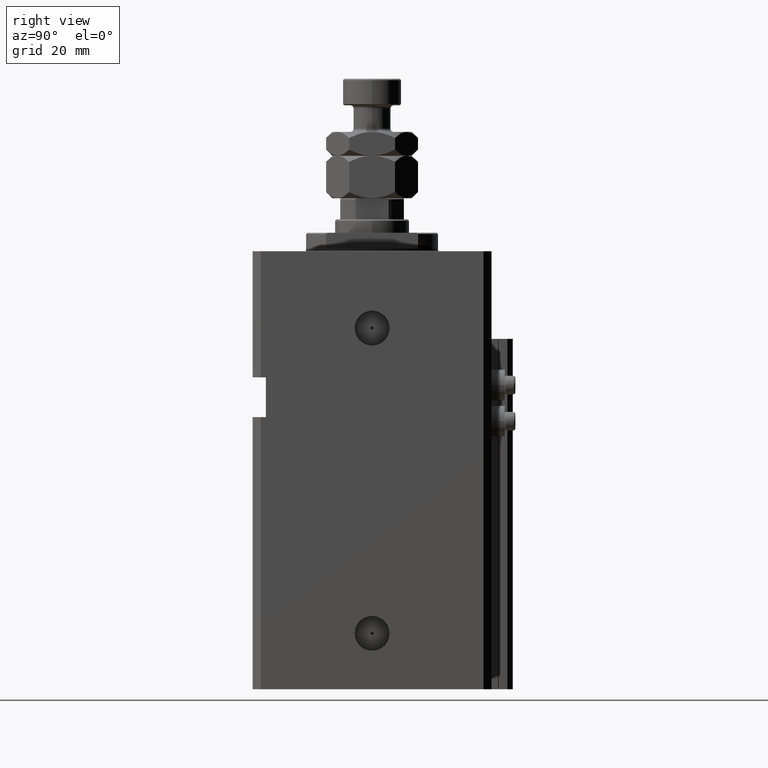
[diagram: clean part render]
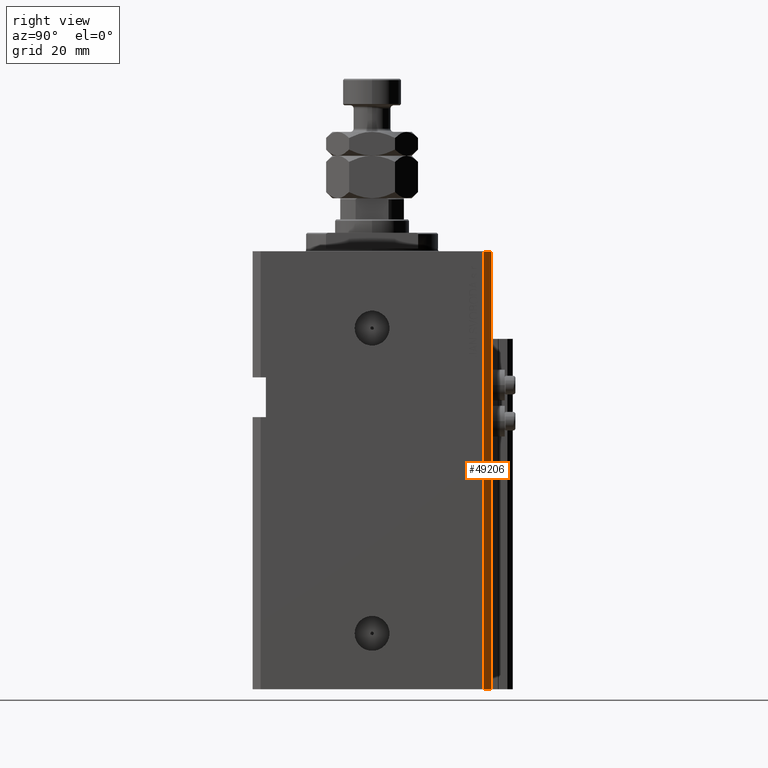
[diagram: same view with one face highlighted and labeled with its STEP entity id]
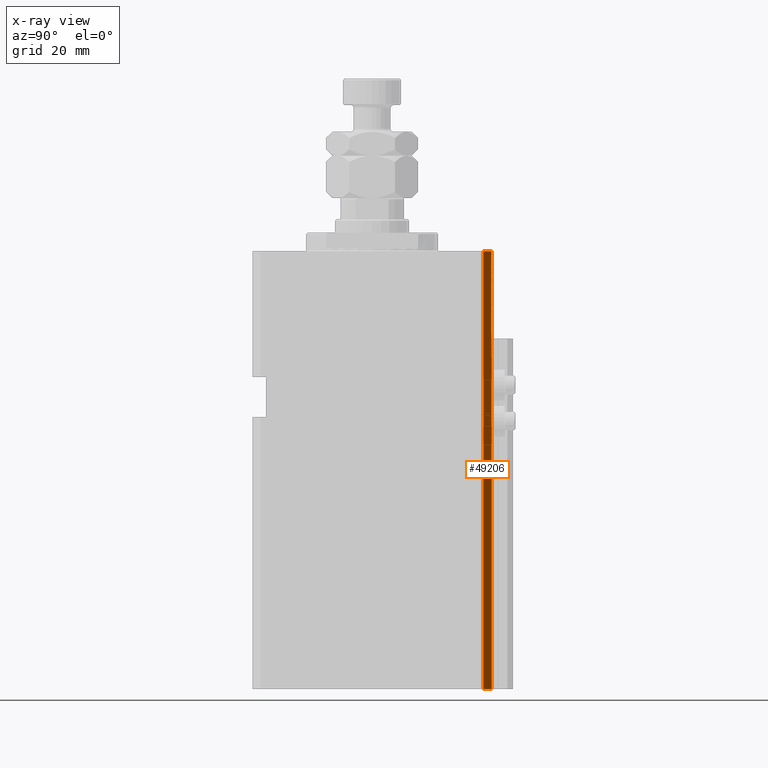
[diagram: x-ray of the same camera — body ghosted, the highlighted face saturated]
A machine part, right view. The second image highlights one B-rep face of the part: STEP entity #49206.
The next image is the same camera in x-ray: the body ghosted, the highlighted face saturated — about 0% of this face is hidden behind the body in this view.
In plain terms, the highlighted planar face has unit normal (0.7071, 0.7071, 0).
Its self-contained STEP definition (entity closure, byte-faithful):
#1126 = ORIENTED_EDGE ( 'NONE', *, *, #10056, .F. ) ;
#1557 = PLANE ( 'NONE',  #15320 ) ;
#2961 = EDGE_CURVE ( 'NONE', #39961, #24037, #12122, .T. ) ;
#6169 = ORIENTED_EDGE ( 'NONE', *, *, #49326, .T. ) ;
#7455 = CARTESIAN_POINT ( 'NONE',  ( 57.50000000000055422, 41.99999999999997868, -165.0000000000000000 ) ) ;
#7685 = DIRECTION ( 'NONE',  ( -0.7071067811865376918, 0.7071067811865574537, 0.000000000000000000 ) ) ;
#9318 = CARTESIAN_POINT ( 'NONE',  ( 54.50000000000058975, 45.00000000000002842, 0.000000000000000000 ) ) ;
#9949 = VECTOR ( 'NONE', #39708, 1000.000000000000000 ) ;
#10056 = EDGE_CURVE ( 'NONE', #24037, #17144, #27767, .T. ) ;
#12122 = LINE ( 'NONE', #43599, #9949 ) ;
#12810 = EDGE_CURVE ( 'NONE', #39961, #34207, #50616, .T. ) ;
#15320 = AXIS2_PLACEMENT_3D ( 'NONE', #22368, #33318, #22112 ) ;
#16936 = CARTESIAN_POINT ( 'NONE',  ( 54.50000000000058975, 45.00000000000002842, -165.0000000000000000 ) ) ;
#17113 = DIRECTION ( 'NONE',  ( 0.000000000000000000, 0.000000000000000000, 1.000000000000000000 ) ) ;
#17144 = VERTEX_POINT ( 'NONE', #9318 ) ;
#21240 = EDGE_LOOP ( 'NONE', ( #1126, #28818, #22292, #6169 ) ) ;
#21601 = FACE_OUTER_BOUND ( 'NONE', #21240, .T. ) ;
#22112 = DIRECTION ( 'NONE',  ( -0.7071067811865376918, 0.7071067811865574537, 0.000000000000000000 ) ) ;
#22292 = ORIENTED_EDGE ( 'NONE', *, *, #12810, .T. ) ;
#22368 = CARTESIAN_POINT ( 'NONE',  ( 57.50000000000055422, 41.99999999999997868, -165.0000000000000000 ) ) ;
#24037 = VERTEX_POINT ( 'NONE', #34608 ) ;
#27767 = LINE ( 'NONE', #43875, #28764 ) ;
#28764 = VECTOR ( 'NONE', #31673, 999.9999999999998863 ) ;
#28818 = ORIENTED_EDGE ( 'NONE', *, *, #2961, .F. ) ;
#31673 = DIRECTION ( 'NONE',  ( -0.7071067811865376918, 0.7071067811865574537, 0.000000000000000000 ) ) ;
#33318 = DIRECTION ( 'NONE',  ( 0.7071067811865574537, 0.7071067811865376918, -0.000000000000000000 ) ) ;
#34207 = VERTEX_POINT ( 'NONE', #16936 ) ;
#34608 = CARTESIAN_POINT ( 'NONE',  ( 57.50000000000055422, 41.99999999999997868, 0.000000000000000000 ) ) ;
#38814 = VECTOR ( 'NONE', #7685, 999.9999999999998863 ) ;
#39446 = CARTESIAN_POINT ( 'NONE',  ( 57.50000000000055422, 41.99999999999997868, -165.0000000000000000 ) ) ;
#39708 = DIRECTION ( 'NONE',  ( 0.000000000000000000, 0.000000000000000000, 1.000000000000000000 ) ) ;
#39784 = LINE ( 'NONE', #43673, #49400 ) ;
#39961 = VERTEX_POINT ( 'NONE', #7455 ) ;
#43599 = CARTESIAN_POINT ( 'NONE',  ( 57.50000000000055422, 41.99999999999997868, -165.0000000000000000 ) ) ;
#43673 = CARTESIAN_POINT ( 'NONE',  ( 54.50000000000058975, 45.00000000000002842, -165.0000000000000000 ) ) ;
#43875 = CARTESIAN_POINT ( 'NONE',  ( 57.50000000000055422, 41.99999999999997868, 0.000000000000000000 ) ) ;
#49206 = ADVANCED_FACE ( 'NONE', ( #21601 ), #1557, .T. ) ;
#49326 = EDGE_CURVE ( 'NONE', #34207, #17144, #39784, .T. ) ;
#49400 = VECTOR ( 'NONE', #17113, 1000.000000000000000 ) ;
#50616 = LINE ( 'NONE', #39446, #38814 ) ;